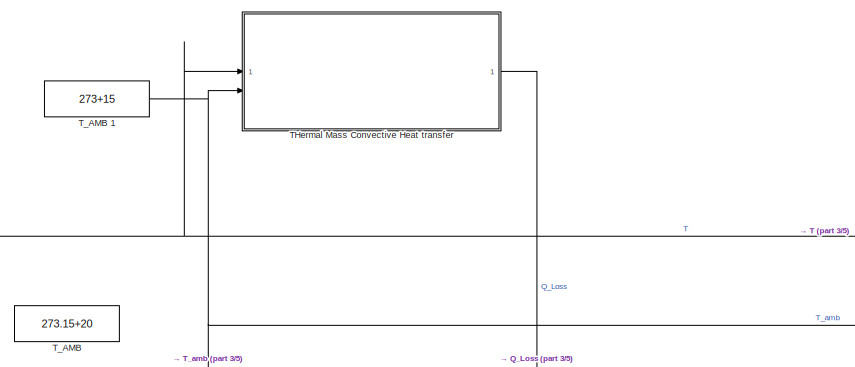
[diagram: root canvas - part 1/5, top center region]
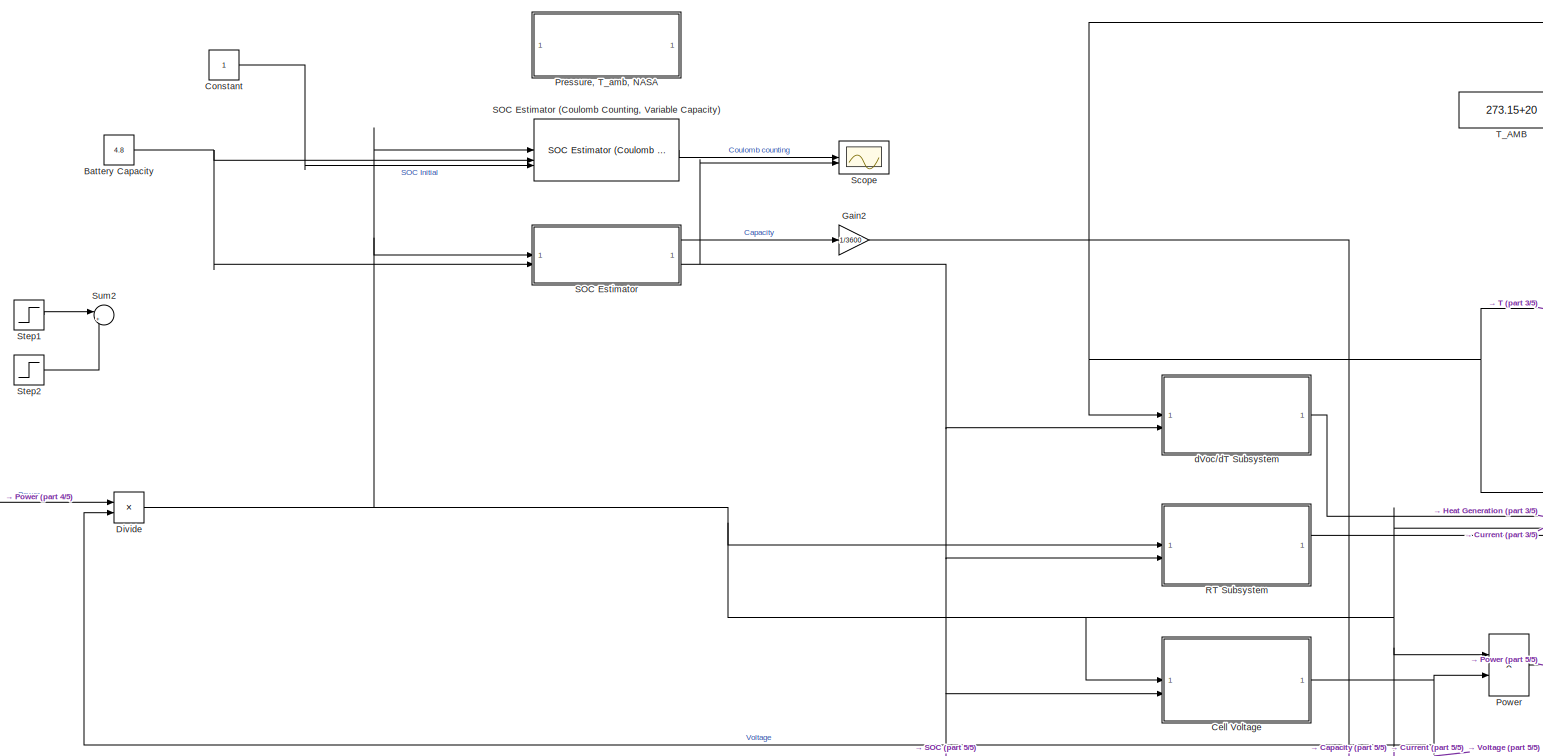
[diagram: root canvas - part 2/5, middle left region]
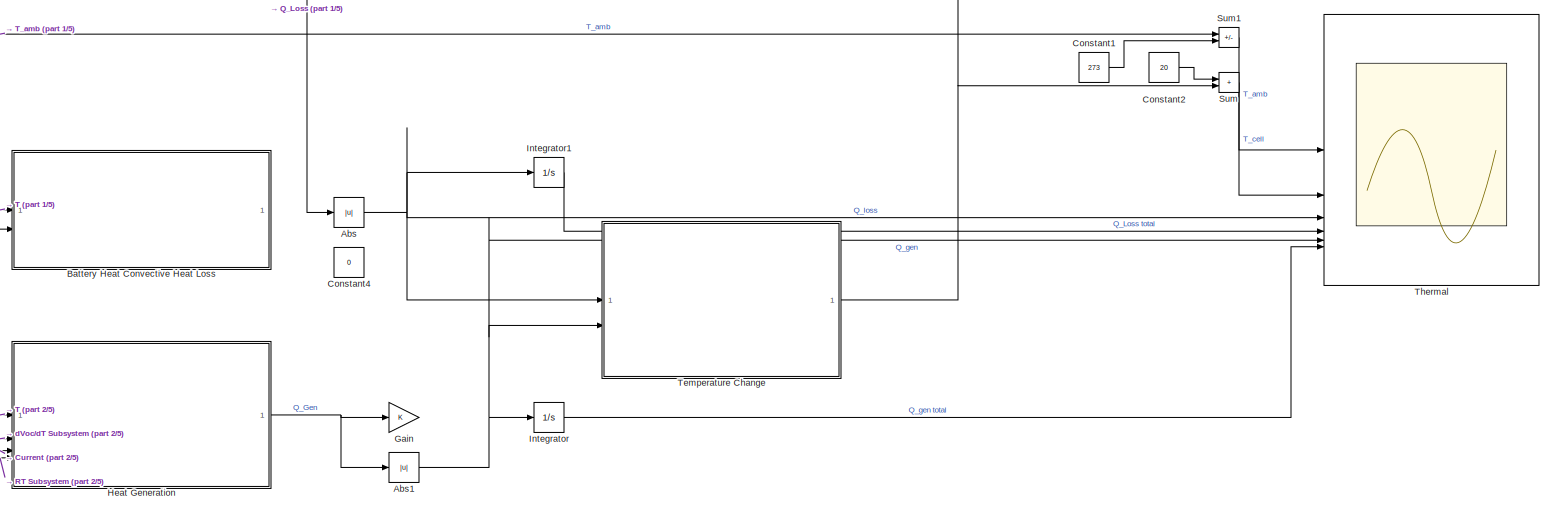
[diagram: root canvas - part 3/5, middle right region]
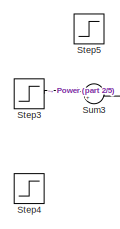
[diagram: root canvas - part 4/5, middle left region]
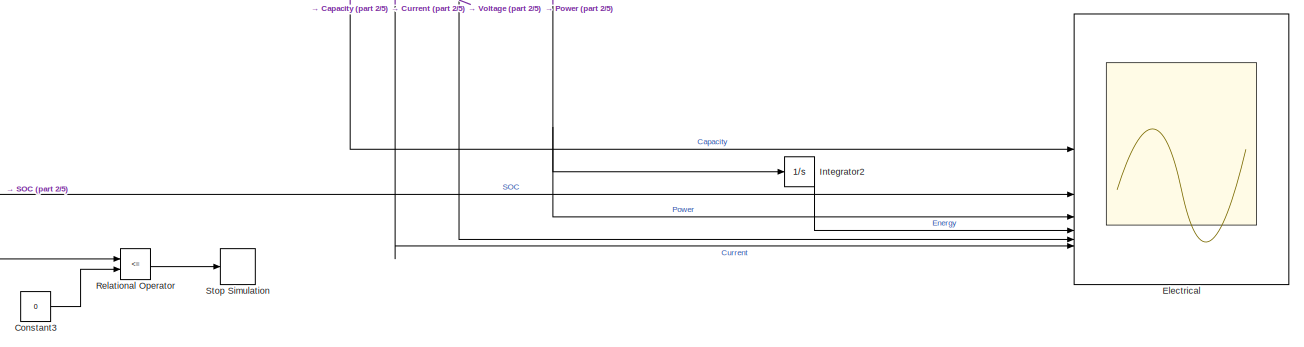
[diagram: root canvas - part 5/5, bottom center region]
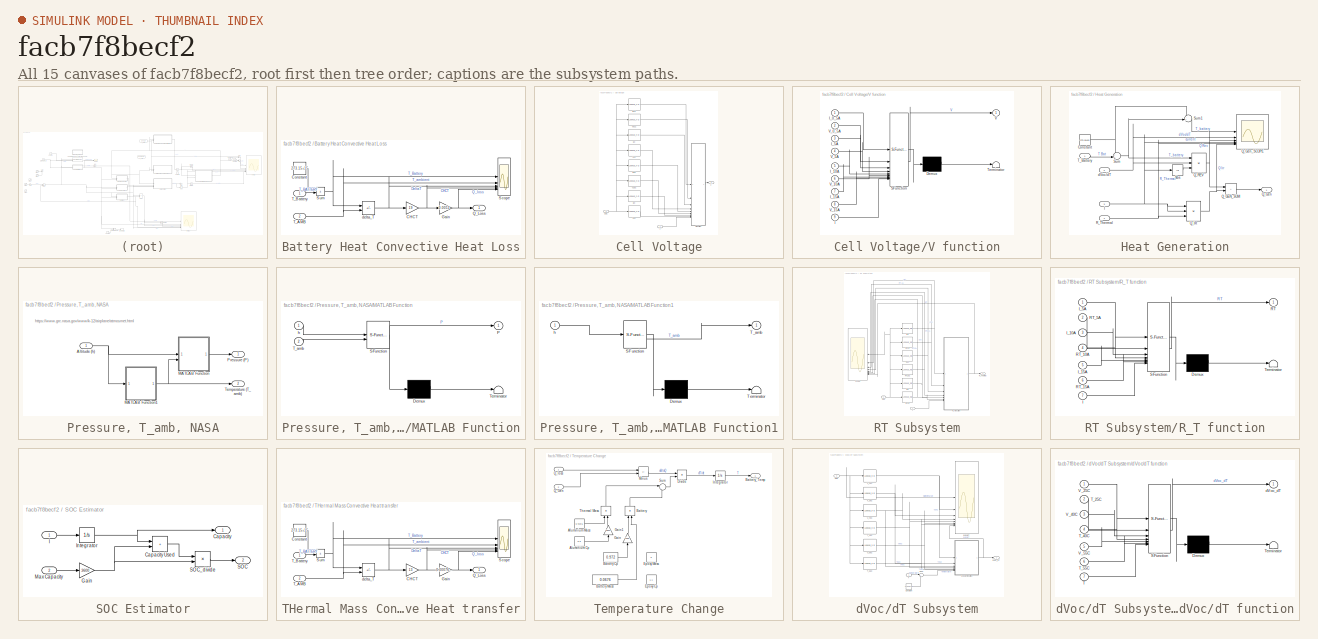
[diagram: thumbnail index - all 15 canvases of the model, root first then tree order]
MODEL slx_facb7f8becf2
KIND model
CONFIG AbsTol = auto
CONFIG EnableMultiTasking = off
CONFIG FixedStep = auto
CONFIG MaxStep = 0.03
CONFIG MinStep = auto
CONFIG RelTol = 1e-6
CONFIG SampleTimeConstraint = Unconstrained
CONFIG SolverName = ode23t
CONFIG StartTime = 0.0
CONFIG StopTime = 6*3600
WORKSPACE source: mxarray member
WORKSPACE C048A = [-4.646 -4.60016161616 -4.553 -4.506 -4.459 -4.41180808081 -4.36496969697 -4.31813131313 -4.27129292929 -4.22445454545 -4.17761616162 -4.13077777778 ... (100 elements, 100x1)]
WORKSPACE C25C = [-4.6365 -4.58998989899 -4.54347979798 -4.49604545455 -4.44945959596 -4.40294949495 -4.35593939394 -4.30893939394 -4.26241919192 -4.21540909091 -4.16848484848 -4.12155555556 ... (100 elements, 100x1)]
WORKSPACE C40C = [-4.693 -4.64635858586 -4.59905555556 -4.55133333333 -4.50411111111 -4.45679292929 -4.40916666667 -4.36194444444 -4.31472222222 -4.26727272727 -4.21977777778 -4.17244444444 ... (100 elements, 100x1)]
WORKSPACE C48A = [-4.565 -4.51971717172 -4.47343434343 -4.42715151515 -4.38086868687 -4.335 -4.289 -4.243 -4.19673737374 -4.15045454545 -4.10417171717 -4.058 ... (100 elements, 100x1)]
WORKSPACE C55C = [-4.736 -4.68873737374 -4.64097474747 -4.59321212121 -4.54544444444 -4.49718686869 -4.44942424242 -4.40166161616 -4.3538989899 -4.30613636364 -4.25837373737 -4.21061111111 ... (100 elements, 100x1)]
WORKSPACE C72A = [-4.552 -4.50695959596 -4.46091919192 -4.41487878788 -4.36983838384 -4.3237979798 -4.27775757576 -4.23171717172 -4.18567676768 -4.13963636364 -4.0935959596 -4.04755555556 ... (100 elements, 100x1)]
WORKSPACE C96A = [-4.554 -4.5084040404 -4.4625 -4.4165 -4.3705 -4.32467676768 -4.27863636364 -4.23257575758 -4.18651515152 -4.14045454545 -4.09439393939 -4.04838888889 ... (100 elements, 100x1)]
WORKSPACE I048A = [-0.48 -0.48 -0.48 -0.48 -0.48 -0.48 -0.48 -0.48 -0.48 -0.48 -0.48 -0.48 ... (100 elements, 100x1)]
WORKSPACE I48A = [-4.792 -4.792 -4.792 -4.792 -4.792 -4.792 -4.792 -4.792 -4.792 -4.792 -4.792 -4.792 ... (100 elements, 100x1)]
WORKSPACE I72A = [-7.19 -7.191 -7.191 -7.191 -7.191 -7.191 -7.191 -7.191 -7.191 -7.191 -7.191 -7.191 ... (100 elements, 100x1)]
WORKSPACE I96A = [-9.591 -9.591 -9.591 -9.591 -9.591 -9.591 -9.591 -9.591 -9.591 -9.591 -9.591 -9.591 ... (100 elements, 100x1)]
WORKSPACE Param: Simulink.Parameter (value not decoded)
WORKSPACE RT048 = [0 0 0 0 0 0 0 0 0 0 0 0 ... (100 elements, 100x1)]
WORKSPACE RT048A = [0 0 0 0 0 0 0 0 0 0 0 0 ... (100 elements, 100x1)]
WORKSPACE RT48A = [0 0.0119433061837 0.0174343602975 0.0201725097385 0.0218841166254 0.022368931384 0.0223984418475 0.0231362034367 0.0227462437396 0.0224237365306 0.0230708588388 0.0242533852717 ... (100 elements, 100x1)]
WORKSPACE RT72A = [0 0.0122979200993 0.0175935407475 0.020202020202 0.0216937838965 0.0225267555263 0.0230549129172 0.0237221330254 0.0239187873731 0.0241969128077 0.0252237294373 0.0266691388928 ... (100 elements, 100x1)]
WORKSPACE RT96A = [0 0.0106302309931 0.015521179894 0.0181246307302 0.0198249832282 0.0208391916243 0.0215479790081 0.0224110566619 0.0227069990911 0.0230234784504 0.0239687038248 0.0253072903996 ... (100 elements, 100x1)]
WORKSPACE SOC01C = [0 0.00986620401171 0.0200172191132 0.0301334481274 0.0402496771416 0.0504072146345 0.0604886575614 0.0705701004883 0.0806515434152 0.0907329863421 0.100814429269 0.110895872196 ... (100 elements, 100x1)]
WORKSPACE SOC15C = [0 0.00989464060642 0.0200089648684 0.0301232891303 0.0400179297367 0.0501322539987 0.0602465782606 0.0703609025226 0.0804752267845 0.0905895510465 0.100703875308 0.11081819957 ... (100 elements, 100x1)]
WORKSPACE SOC1C = [0 0.00991956807948 0.0200581942093 0.0301968203392 0.0403354464691 0.0503833515882 0.0604600219058 0.0705366922234 0.0806708929381 0.090809519068 0.100948145198 0.111062431544 ... (100 elements, 100x1)]
WORKSPACE SOC25C = [0 0.0100312953758 0.0200625907517 0.0302932266698 0.0403408614344 0.0503721568102 0.0605112921515 0.0706482489077 0.0806817228687 0.0908208582101 0.100941475578 0.111063182238 ... (100 elements, 100x1)]
WORKSPACE SOC2C = [0 0.0100122880097 0.020092226614 0.030193236715 0.040294246816 0.050356441002 0.0604663233122 0.0705806417269 0.0806949601416 0.0908092785563 0.100923596971 0.111025716098 ... (100 elements, 100x1)]
WORKSPACE SOC40C = [0 0.00993850716842 0.0200179937022 0.03018680304 0.04024907072 0.0503317857888 0.0604801477378 0.0705424154178 0.0806046830978 0.090715378804 0.100835760116 0.110921703719 ... (100 elements, 100x1)]
WORKSPACE SOC55C = [0 0.00997943966694 0.0200644536582 0.0301494676495 0.040235548048 0.0504250699563 0.0605100839476 0.0705950979388 0.0806801119301 0.0907651259214 0.100850139913 0.110935153904 ... (100 elements, 100x1)]
WORKSPACE T25C = [297.946805556 297.946193603 297.929952862 297.907583333 297.879161616 297.864882155 297.845863636 297.84875 297.844378788 297.852901515 297.87439899 297.893138889 ... (100 elements, 100x1)]
WORKSPACE T40C = [312.783611111 312.799016835 312.779327441 312.709037879 312.764760943 312.775969697 312.760472222 312.812088384 312.770179293 312.777401515 312.764757576 312.816768519 ... (100 elements, 100x1)]
WORKSPACE T55C = [327.602916667 327.628770202 327.629694444 327.60230303 327.617340909 327.627280303 327.630606061 327.639113636 327.603484848 327.641583333 327.626977273 327.647388889 ... (100 elements, 100x1)]
WORKSPACE V048A = [2.5 2.68851515152 2.80367676768 2.88551515152 2.951 3.00419191919 3.05003030303 3.09186868687 3.124 3.153 3.18438383838 3.21722222222 ... (100 elements, 100x1)]
WORKSPACE V25C = [2.4995 2.68887878788 2.80454040404 2.88553030303 2.95054040404 3.00379292929 3.04906060606 3.09057070707 3.13208080808 3.17309090909 3.21251515152 3.24794444444 ... (100 elements, 100x1)]
WORKSPACE V40C = [2.499 2.68894444444 2.80844444444 2.89090909091 2.95538888889 3.00911111111 3.05384848485 3.09348989899 3.13214646465 3.17127272727 3.21022222222 3.24738888889 ... (100 elements, 100x1)]
WORKSPACE V48A = [2.5 2.63128282828 2.72013131313 2.78884848485 2.84613131313 2.897 2.9426969697 2.981 3.015 3.04554545455 3.07382828283 3.101 ... (100 elements, 100x1)]
WORKSPACE V55C = [2.499 2.68891414141 2.80855050505 2.89028787879 2.95405050505 3.00636868687 3.05007575758 3.08772222222 3.12348989899 3.1595 3.19588888889 3.2315 ... (100 elements, 100x1)]
WORKSPACE V72A = [2.5 2.60008080808 2.67716161616 2.74024242424 2.795 2.8422020202 2.88424242424 2.92128282828 2.952 2.979 3.003 3.02544444444 ... (100 elements, 100x1)]
WORKSPACE V96A = [2.5 2.58656060606 2.65481313131 2.71168181818 2.76085858586 2.80432323232 2.84336363636 2.87692424242 2.90621717172 2.93218181818 2.9545 2.9745 ... (100 elements, 100x1)]
WORKSPACE t_CHG_25C = [18010 17847.8787879 17665.7575758 17483.6363636 17301.5151515 17119.3939394 16952.2727273 16770.1515152 16588.030303 16420.9090909 16238.7878788 16056.6666667 ... (100 elements, 100x1)]
WORKSPACE t_CHG_40C = [14605 14477.2727273 14329.5454545 14181.8181818 14049.0909091 13901.3636364 13768.6363636 13620.9090909 13473.1818182 13325.4545455 13177.7272727 13030 ... (100 elements, 100x1)]
WORKSPACE t_CHG_55C = [17190 17046.0606061 16872.1212121 16719.5454545 16554.2424242 16380.3030303 16206.3636364 16032.4242424 15858.4848485 15684.5454545 15510.6060606 15336.6666667 ... (100 elements, 100x1)]
BLOCK [Abs] Abs
  SaturateOnIntegerOverflow = off
BLOCK [Abs] Abs1
  SaturateOnIntegerOverflow = off
BLOCK [Constant] Battery Capacity
  Value = 4.8
  VectorParams1D = off
BLOCK [SubSystem] Battery Heat Convective Heat Loss
  Commented = on
BLOCK [Gain] Battery Heat Convective Heat Loss/CHCT
  Gain = 19
BLOCK [Constant] Battery Heat Convective Heat Loss/Constant
  Value = 273.15+15
BLOCK [Gain] Battery Heat Convective Heat Loss/Gain
  Gain = 0.0053
BLOCK [Outport] Battery Heat Convective Heat Loss/Q_Loss
BLOCK [Scope] Battery Heat Convective Heat Loss/Scope
  Floating = off
  NumInputPorts = 5
  ScopeSpecificationString = Simulink.scopes.TimeScopeBlockCfg('CurrentConfiguration', extmgr.ConfigurationSet(extmgr.Configuration('Core','General UI',true),extmgr.Configuration('Core','Source UI',true),extmgr.Configuration('Sources','WiredSimulink',true,'DataLoggingVariableName','ScopeData2'),extmgr.Configuration('Visuals','Time Domain',true,'SerializedDisplays',{struct('MinYLimReal','296.18737','MaxYLimReal','315.8137','YL...<+7204ch>
BLOCK [Sum] Battery Heat Convective Heat Loss/Sum
  IconShape = rectangular
  Inputs = +|+
BLOCK [Inport] Battery Heat Convective Heat Loss/T_AMB
  Port = 2
BLOCK [Inport] Battery Heat Convective Heat Loss/T_Battery
BLOCK [Sum] Battery Heat Convective Heat Loss/delta_T
  IconShape = rectangular
  Inputs = +|-
BLOCK [SubSystem] Cell Voltage
BLOCK [Inport] Cell Voltage/I
BLOCK [Lookup_n-D] Cell Voltage/I01C
  BreakpointsForDimension1 = SOC01C
  InputPortMap = u0
  InternalRulePriority = Speed
  NumberOfTableDimensions = 1
  RndMeth = Simplest
  SupportTunableSize = on
  Table = I048A
BLOCK [Lookup_n-D] Cell Voltage/I1.5C
  BreakpointsForDimension1 = SOC15C
  InputPortMap = u0
  InternalRulePriority = Speed
  NumberOfTableDimensions = 1
  RndMeth = Simplest
  SupportTunableSize = on
  Table = I72A
BLOCK [Lookup_n-D] Cell Voltage/I1C
  BreakpointsForDimension1 = SOC1C
  InputPortMap = u0
  InternalRulePriority = Speed
  NumberOfTableDimensions = 1
  RndMeth = Simplest
  SupportTunableSize = on
  Table = I48A
BLOCK [Lookup_n-D] Cell Voltage/I2C
  BreakpointsForDimension1 = SOC2C
  InputPortMap = u0
  InternalRulePriority = Speed
  NumberOfTableDimensions = 1
  RndMeth = Simplest
  SupportTunableSize = on
  Table = I96A
BLOCK [Inport] Cell Voltage/SOC
  Port = 2
BLOCK [Outport] Cell Voltage/V
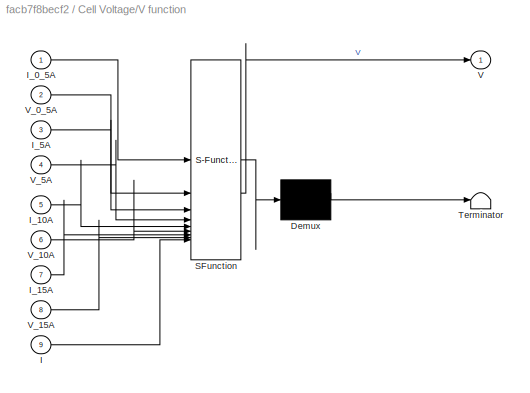
BLOCK [SubSystem] Cell Voltage/V function
  ErrorFcn = Stateflow.Translate.translate
  PermitHierarchicalResolution = ExplicitOnly
  SFBlockType = MATLAB Function
  TreatAsAtomicUnit = on
BLOCK [Demux] Cell Voltage/V function/ Demux 
  Outputs = 1
BLOCK [S-Function] Cell Voltage/V function/ SFunction 
  EnableBusSupport = on
  FunctionName = sf_sfun
  PortCounts = [9 2]
  SFcnIsStateOwnerBlock = off
  SFunctionDeploymentMode = off
  Tag = Stateflow S-Function 3
BLOCK [Terminator] Cell Voltage/V function/ Terminator 
BLOCK [Inport] Cell Voltage/V function/I
  Port = 9
BLOCK [Inport] Cell Voltage/V function/I_0_5A
BLOCK [Inport] Cell Voltage/V function/I_10A
  Port = 5
BLOCK [Inport] Cell Voltage/V function/I_15A
  Port = 7
BLOCK [Inport] Cell Voltage/V function/I_5A
  Port = 3
BLOCK [Outport] Cell Voltage/V function/V
BLOCK [Inport] Cell Voltage/V function/V_0_5A
  Port = 2
BLOCK [Inport] Cell Voltage/V function/V_10A
  Port = 6
BLOCK [Inport] Cell Voltage/V function/V_15A
  Port = 8
BLOCK [Inport] Cell Voltage/V function/V_5A
  Port = 4
BLOCK [Lookup_n-D] Cell Voltage/V01C
  BreakpointsForDimension1 = SOC01C
  InputPortMap = u0
  InternalRulePriority = Speed
  NumberOfTableDimensions = 1
  RndMeth = Simplest
  SupportTunableSize = on
  Table = V048A
BLOCK [Lookup_n-D] Cell Voltage/V1.5C
  BreakpointsForDimension1 = SOC15C
  InputPortMap = u0
  InternalRulePriority = Speed
  NumberOfTableDimensions = 1
  RndMeth = Simplest
  SupportTunableSize = on
  Table = V72A
BLOCK [Lookup_n-D] Cell Voltage/V1C
  BreakpointsForDimension1 = SOC1C
  InputPortMap = u0
  InternalRulePriority = Speed
  NumberOfTableDimensions = 1
  RndMeth = Simplest
  SupportTunableSize = on
  Table = V48A
BLOCK [Lookup_n-D] Cell Voltage/V2C
  BreakpointsForDimension1 = SOC2C
  InputPortMap = u0
  InternalRulePriority = Speed
  NumberOfTableDimensions = 1
  RndMeth = Simplest
  SupportTunableSize = on
  Table = V96A
BLOCK [Constant] Constant
BLOCK [Constant] Constant1
  Value = 273
BLOCK [Constant] Constant2
  Value = 20
BLOCK [Constant] Constant3
  Value = 0
BLOCK [Constant] Constant4
  Value = 0
BLOCK [Product] Divide
  Inputs = */
BLOCK [Scope] Electrical
  Floating = off
  NumInputPorts = 6
  ScopeSpecificationString = Simulink.scopes.TimeScopeBlockCfg('CurrentConfiguration', extmgr.ConfigurationSet(extmgr.Configuration('Core','General UI',true),extmgr.Configuration('Core','Source UI',true),extmgr.Configuration('Sources','WiredSimulink',true),extmgr.Configuration('Visuals','Time Domain',true,'SerializedDisplays',{struct('MinYLimReal','-5.4','MaxYLimReal','0.6','YLabelReal','','MinYLimMag','0.00000','MaxYLimMag',...<+5589ch>
BLOCK [Gain] Gain
BLOCK [Gain] Gain2
  Gain = 1/3600
BLOCK [SubSystem] Heat Generation
BLOCK [Abs] Heat Generation/Abs
  SaturateOnIntegerOverflow = off
BLOCK [Constant] Heat Generation/Constant
  Value = 273.15+20
BLOCK [Inport] Heat Generation/I
  Port = 3
BLOCK [Sum] Heat Generation/Q_GEN_SUM
  IconShape = rectangular
BLOCK [Outport] Heat Generation/Q_Gen
BLOCK [Scope] Heat Generation/Q_Gen_SCOPE
  Floating = off
  NumInputPorts = 6
  ScopeSpecificationString = Simulink.scopes.TimeScopeBlockCfg('CurrentConfiguration', extmgr.ConfigurationSet(extmgr.Configuration('Core','General UI',true),extmgr.Configuration('Core','Source UI',true),extmgr.Configuration('Sources','WiredSimulink',true,'DataLoggingVariableName','ScopeData2'),extmgr.Configuration('Visuals','Time Domain',true,'SerializedDisplays',{struct('MinYLimReal','-2.03398','MaxYLimReal','18.29364','YLa...<+5708ch>
BLOCK [Product] Heat Generation/Q_IR
  Inputs = 3
BLOCK [Product] Heat Generation/Q_REV
  Inputs = 3
BLOCK [Inport] Heat Generation/R_Thermal
  Port = 4
BLOCK [Sum] Heat Generation/Sum
  Inputs = ++|
BLOCK [Sum] Heat Generation/Sum1
  Inputs = -+|
BLOCK [Inport] Heat Generation/T_Battery
BLOCK [Inport] Heat Generation/dVoc//dT
  Port = 2
BLOCK [Integrator] Integrator
BLOCK [Integrator] Integrator1
BLOCK [Integrator] Integrator2
BLOCK [Product] Power
BLOCK [SubSystem] Pressure, T_amb, NASA
BLOCK [Inport] Pressure, T_amb, NASA/Altitude (h)
BLOCK [SubSystem] Pressure, T_amb, NASA/MATLAB Function
  ErrorFcn = Stateflow.Translate.translate
  PermitHierarchicalResolution = ExplicitOnly
  SFBlockType = MATLAB Function
  TreatAsAtomicUnit = on
BLOCK [Demux] Pressure, T_amb, NASA/MATLAB Function/ Demux 
  Outputs = 1
BLOCK [S-Function] Pressure, T_amb, NASA/MATLAB Function/ SFunction 
  EnableBusSupport = on
  FunctionName = sf_sfun
  PortCounts = [2 2]
  SFcnIsStateOwnerBlock = off
  SFunctionDeploymentMode = off
  Tag = Stateflow S-Function 4
BLOCK [Terminator] Pressure, T_amb, NASA/MATLAB Function/ Terminator 
BLOCK [Outport] Pressure, T_amb, NASA/MATLAB Function/P
BLOCK [Inport] Pressure, T_amb, NASA/MATLAB Function/T_amb
  Port = 2
BLOCK [Inport] Pressure, T_amb, NASA/MATLAB Function/h
BLOCK [SubSystem] Pressure, T_amb, NASA/MATLAB Function1
  ErrorFcn = Stateflow.Translate.translate
  PermitHierarchicalResolution = ExplicitOnly
  SFBlockType = MATLAB Function
  TreatAsAtomicUnit = on
BLOCK [Demux] Pressure, T_amb, NASA/MATLAB Function1/ Demux 
  Outputs = 1
BLOCK [S-Function] Pressure, T_amb, NASA/MATLAB Function1/ SFunction 
  EnableBusSupport = on
  FunctionName = sf_sfun
  PortCounts = [1 2]
  SFcnIsStateOwnerBlock = off
  SFunctionDeploymentMode = off
  Tag = Stateflow S-Function 5
BLOCK [Terminator] Pressure, T_amb, NASA/MATLAB Function1/ Terminator 
BLOCK [Outport] Pressure, T_amb, NASA/MATLAB Function1/T_amb
BLOCK [Inport] Pressure, T_amb, NASA/MATLAB Function1/h
BLOCK [Outport] Pressure, T_amb, NASA/Pressure (P)
BLOCK [Outport] Pressure, T_amb, NASA/Temperature (T_amb)
  Port = 2
BLOCK [SubSystem] RT Subsystem
BLOCK [Inport] RT Subsystem/I
BLOCK [Lookup_n-D] RT Subsystem/I1.5C
  BreakpointsForDimension1 = SOC15C
  InputPortMap = u0
  InternalRulePriority = Speed
  NumberOfTableDimensions = 1
  RndMeth = Simplest
  Table = I72A
BLOCK [Lookup_n-D] RT Subsystem/I1C
  BreakpointsForDimension1 = SOC1C
  InputPortMap = u0
  InternalRulePriority = Speed
  NumberOfTableDimensions = 1
  RndMeth = Simplest
  Table = I48A
BLOCK [Lookup_n-D] RT Subsystem/I2C
  BreakpointsForDimension1 = SOC2C
  InputPortMap = u0
  InternalRulePriority = Speed
  NumberOfTableDimensions = 1
  RndMeth = Simplest
  Table = I96A
BLOCK [Lookup_n-D] RT Subsystem/RT1.5C
  BreakpointsForDimension1 = SOC15C
  InputPortMap = u0
  InternalRulePriority = Speed
  NumberOfTableDimensions = 1
  RndMeth = Simplest
  Table = RT72A
BLOCK [Lookup_n-D] RT Subsystem/RT1C
  BreakpointsForDimension1 = SOC1C
  InputPortMap = u0
  InternalRulePriority = Speed
  NumberOfTableDimensions = 1
  RndMeth = Simplest
  Table = RT48A
BLOCK [Lookup_n-D] RT Subsystem/RT2C
  BreakpointsForDimension1 = SOC2C
  InputPortMap = u0
  InternalRulePriority = Speed
  NumberOfTableDimensions = 1
  RndMeth = Simplest
  Table = RT96A
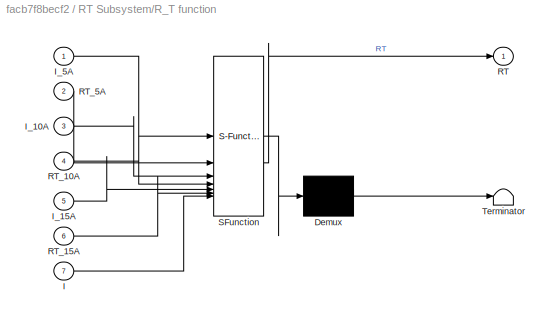
BLOCK [SubSystem] RT Subsystem/R_T function
  ErrorFcn = Stateflow.Translate.translate
  PermitHierarchicalResolution = ExplicitOnly
  SFBlockType = MATLAB Function
  TreatAsAtomicUnit = on
BLOCK [Demux] RT Subsystem/R_T function/ Demux 
  Outputs = 1
BLOCK [S-Function] RT Subsystem/R_T function/ SFunction 
  EnableBusSupport = on
  FunctionName = sf_sfun
  PortCounts = [7 2]
  SFcnIsStateOwnerBlock = off
  SFunctionDeploymentMode = off
  Tag = Stateflow S-Function 1
BLOCK [Terminator] RT Subsystem/R_T function/ Terminator 
BLOCK [Inport] RT Subsystem/R_T function/I
  Port = 7
BLOCK [Inport] RT Subsystem/R_T function/I_10A
  Port = 3
BLOCK [Inport] RT Subsystem/R_T function/I_15A
  Port = 5
BLOCK [Inport] RT Subsystem/R_T function/I_5A
BLOCK [Outport] RT Subsystem/R_T function/RT
BLOCK [Inport] RT Subsystem/R_T function/RT_10A
  Port = 4
BLOCK [Inport] RT Subsystem/R_T function/RT_15A
  Port = 6
BLOCK [Inport] RT Subsystem/R_T function/RT_5A
  Port = 2
BLOCK [Outport] RT Subsystem/R_Thermal
BLOCK [Inport] RT Subsystem/SOC
  Port = 2
BLOCK [Scope] RT Subsystem/Scope
  Floating = off
  NameLocation = top
  NumInputPorts = 8
  ScopeSpecificationString = Simulink.scopes.TimeScopeBlockCfg('CurrentConfiguration', extmgr.ConfigurationSet(extmgr.Configuration('Core','General UI',true),extmgr.Configuration('Core','Source UI',true),extmgr.Configuration('Sources','WiredSimulink',true,'DataLoggingVariableName','ScopeData3'),extmgr.Configuration('Visuals','Time Domain',true,'SerializedDisplays',{struct('MinYLimReal','-0.125','MaxYLimReal','1.125','YLabelRe...<+7212ch>
BLOCK [RelationalOperator] Relational Operator
  InputSameDT = off
  Operator = <=
  OutDataTypeStr = boolean
  RndMeth = Simplest
BLOCK [SubSystem] SOC Estimator
BLOCK [Reference] SOC Estimator (Coulomb Counting, Variable Capacity)  REF=BatteryEstimators/SOC Estimator
(Coulomb Counting, Variable Capacity)
  LibrarySourceBlock = batt_sl_lib/Estimators/SOC Estimator\n(Coulomb Counting, Variable Capacity)
  SourceBlock = BatteryEstimators/SOC Estimator\n(Coulomb Counting, Variable Capacity)
  SourceType = SOC Estimator (Coulomb Counting, Variable Capacity)
BLOCK [Outport] SOC Estimator/Capacity
BLOCK [Sum] SOC Estimator/Capacity Used
  IconShape = rectangular
BLOCK [Gain] SOC Estimator/Gain
  Gain = 3600
BLOCK [Inport] SOC Estimator/I
BLOCK [Integrator] SOC Estimator/Integrator
BLOCK [Inport] SOC Estimator/Max Capacity
  Port = 2
BLOCK [Outport] SOC Estimator/SOC
  Port = 2
BLOCK [Product] SOC Estimator/SOC_divide
  Inputs = */
BLOCK [Scope] Scope
  Floating = off
  NumInputPorts = 2
  ScopeSpecificationString = Simulink.scopes.TimeScopeBlockCfg('CurrentConfiguration', extmgr.ConfigurationSet(extmgr.Configuration('Core','General UI',true),extmgr.Configuration('Core','Source UI',true),extmgr.Configuration('Sources','WiredSimulink',true,'DataLoggingVariableName','ScopeData1'),extmgr.Configuration('Visuals','Time Domain',true,'SerializedDisplays',{struct('MinYLimReal','-0.12489','MaxYLimReal','1.12499','YLab...<+2146ch>
BLOCK [Step] Step1
  After = -25
  SampleTime = 0
  Time = 2
BLOCK [Step] Step2
  After = +25-1
  SampleTime = 0
  Time = 180
BLOCK [Step] Step3
  After = -36/12
  SampleTime = 0
BLOCK [Step] Step4
  After = +85-2.5
  SampleTime = 0
  Time = 180
BLOCK [Step] Step5
  After = -300/12
  SampleTime = 0
BLOCK [Stop] Stop Simulation
BLOCK [Sum] Sum
  IconShape = rectangular
  Inputs = +|+
BLOCK [Sum] Sum1
  IconShape = rectangular
  Inputs = +|-
BLOCK [Sum] Sum2
  Inputs = |++
BLOCK [Sum] Sum3
  Inputs = |++
BLOCK [SubSystem] THermal Mass Convective Heat transfer
BLOCK [Gain] THermal Mass Convective Heat transfer/CHCT
  Gain = 13
BLOCK [Constant] THermal Mass Convective Heat transfer/Constant
  Value = 273.15+15
BLOCK [Gain] THermal Mass Convective Heat transfer/Gain
  Gain = 0.0007667
BLOCK [Outport] THermal Mass Convective Heat transfer/Q_Loss
BLOCK [Scope] THermal Mass Convective Heat transfer/Scope
  Floating = off
  NumInputPorts = 5
  ScopeSpecificationString = Simulink.scopes.TimeScopeBlockCfg('CurrentConfiguration', extmgr.ConfigurationSet(extmgr.Configuration('Core','General UI',true),extmgr.Configuration('Core','Source UI',true),extmgr.Configuration('Sources','WiredSimulink',true,'DataLoggingVariableName','ScopeData2'),extmgr.Configuration('Visuals','Time Domain',true,'SerializedDisplays',{struct('MinYLimReal','286.49828','MaxYLimReal','303.00367','Y...<+7200ch>
BLOCK [Sum] THermal Mass Convective Heat transfer/Sum
  IconShape = rectangular
  Inputs = +|+
BLOCK [Inport] THermal Mass Convective Heat transfer/T_AMB
  Port = 2
BLOCK [Inport] THermal Mass Convective Heat transfer/T_Battery
BLOCK [Sum] THermal Mass Convective Heat transfer/delta_T
  IconShape = rectangular
  Inputs = +|-
BLOCK [Constant] T_AMB 
  Value = 273.15+20
  VectorParams1D = off
BLOCK [Constant] T_AMB 1
  Value = 273+15
  VectorParams1D = off
BLOCK [SubSystem] Temperature Change
BLOCK [Constant] Temperature Change/Aluminium Cp
  Value = 0.9
  VectorParams1D = off
BLOCK [Constant] Temperature Change/Aluminium Mass
  Value = 0.414/6
  VectorParams1D = off
BLOCK [Product] Temperature Change/Battery
  NameLocation = top
  OutDataTypeStr = double
BLOCK [Constant] Temperature Change/Battery Cp
  Value = 0.972
  VectorParams1D = off
BLOCK [Constant] Temperature Change/Battery Mass
  Value = 0.0676
  VectorParams1D = off
BLOCK [Outport] Temperature Change/Battery_Temp
BLOCK [Product] Temperature Change/Divide
  Inputs = */
BLOCK [Constant] Temperature Change/Epoxy Cp
  Value = 1.1
  VectorParams1D = off
BLOCK [Constant] Temperature Change/Epoxy Mass
  Value = 0
  VectorParams1D = off
BLOCK [Gain] Temperature Change/Gain
  Gain = 1000
  NameLocation = right
BLOCK [Gain] Temperature Change/Gain1
  Gain = 1000
  NameLocation = right
BLOCK [Integrator] Temperature Change/Integrator
BLOCK [Sum] Temperature Change/Minus
  IconShape = rectangular
  Inputs = -+
BLOCK [Inport] Temperature Change/Q_Gen
  Port = 2
BLOCK [Inport] Temperature Change/Q_loss
BLOCK [Sum] Temperature Change/Sum
  Inputs = |++
BLOCK [Product] Temperature Change/Thermal Mass
  NameLocation = top
  OutDataTypeStr = double
BLOCK [Scope] Thermal
  Floating = off
  NumInputPorts = 6
  ScopeSpecificationString = Simulink.scopes.TimeScopeBlockCfg('CurrentConfiguration', extmgr.ConfigurationSet(extmgr.Configuration('Core','General UI',true),extmgr.Configuration('Core','Source UI',true),extmgr.Configuration('Sources','WiredSimulink',true,'DataLoggingVariableName','ScopeData1'),extmgr.Configuration('Visuals','Time Domain',true,'SerializedDisplays',{struct('MinYLimReal','5.00000','MaxYLimReal','25.00000','YLab...<+5378ch>
BLOCK [SubSystem] dVoc//dT Subsystem
BLOCK [Constant] dVoc//dT Subsystem/Constant
  Value = 273.15+20
BLOCK [Inport] dVoc//dT Subsystem/SOC
  Port = 2
BLOCK [Sum] dVoc//dT Subsystem/Sum
  Inputs = |++
BLOCK [Inport] dVoc//dT Subsystem/T
BLOCK [Lookup_n-D] dVoc//dT Subsystem/T_25C
  BreakpointsForDimension1 = SOC25C
  InputPortMap = u0
  InternalRulePriority = Speed
  NumberOfTableDimensions = 1
  RndMeth = Simplest
  SupportTunableSize = on
  Table = T25C
BLOCK [Lookup_n-D] dVoc//dT Subsystem/T_40C
  BreakpointsForDimension1 = SOC40C
  InputPortMap = u0
  InternalRulePriority = Speed
  NumberOfTableDimensions = 1
  RndMeth = Simplest
  SupportTunableSize = on
  Table = T40C
BLOCK [Lookup_n-D] dVoc//dT Subsystem/T_55C
  BreakpointsForDimension1 = SOC55C
  InputPortMap = u0
  InternalRulePriority = Speed
  NumberOfTableDimensions = 1
  RndMeth = Simplest
  SupportTunableSize = on
  Table = T55C
BLOCK [Lookup_n-D] dVoc//dT Subsystem/V_25C
  BreakpointsForDimension1 = SOC25C
  InputPortMap = u0
  InternalRulePriority = Speed
  NumberOfTableDimensions = 1
  RndMeth = Simplest
  SupportTunableSize = on
  Table = V25C
BLOCK [Lookup_n-D] dVoc//dT Subsystem/V_40C
  BreakpointsForDimension1 = SOC40C
  InputPortMap = u0
  InternalRulePriority = Speed
  NumberOfTableDimensions = 1
  RndMeth = Simplest
  SupportTunableSize = on
  Table = V40C
BLOCK [Lookup_n-D] dVoc//dT Subsystem/V_55C
  BreakpointsForDimension1 = SOC55C
  InputPortMap = u0
  InternalRulePriority = Speed
  NumberOfTableDimensions = 1
  RndMeth = Simplest
  SupportTunableSize = on
  Table = V55C
BLOCK [Scope] dVoc//dT Subsystem/dVoc//dT
  Floating = off
  NumInputPorts = 8
  ScopeSpecificationString = Simulink.scopes.TimeScopeBlockCfg('CurrentConfiguration', extmgr.ConfigurationSet(extmgr.Configuration('Core','General UI',true),extmgr.Configuration('Core','Source UI',true),extmgr.Configuration('Sources','WiredSimulink',true,'DataLoggingVariableName','ScopeData1'),extmgr.Configuration('Visuals','Time Domain',true,'SerializedDisplays',{struct('MinYLimReal','-0.12452','MaxYLimReal','1.12495','YLab...<+6947ch>
BLOCK [SubSystem] dVoc//dT Subsystem/dVoc//dT function
  ErrorFcn = Stateflow.Translate.translate
  PermitHierarchicalResolution = ExplicitOnly
  SFBlockType = MATLAB Function
  TreatAsAtomicUnit = on
BLOCK [Demux] dVoc//dT Subsystem/dVoc//dT function/ Demux 
  Outputs = 1
BLOCK [S-Function] dVoc//dT Subsystem/dVoc//dT function/ SFunction 
  EnableBusSupport = on
  FunctionName = sf_sfun
  PortCounts = [7 2]
  SFcnIsStateOwnerBlock = off
  SFunctionDeploymentMode = off
  Tag = Stateflow S-Function 2
BLOCK [Terminator] dVoc//dT Subsystem/dVoc//dT function/ Terminator 
BLOCK [Inport] dVoc//dT Subsystem/dVoc//dT function/T
  Port = 7
BLOCK [Inport] dVoc//dT Subsystem/dVoc//dT function/T_25C
  Port = 2
BLOCK [Inport] dVoc//dT Subsystem/dVoc//dT function/T_40C
  Port = 4
BLOCK [Inport] dVoc//dT Subsystem/dVoc//dT function/T_55C
  Port = 6
BLOCK [Inport] dVoc//dT Subsystem/dVoc//dT function/V_25C
BLOCK [Inport] dVoc//dT Subsystem/dVoc//dT function/V_40C
  Port = 3
BLOCK [Inport] dVoc//dT Subsystem/dVoc//dT function/V_55C
  Port = 5
BLOCK [Outport] dVoc//dT Subsystem/dVoc//dT function/dVoc_dT
BLOCK [Outport] dVoc//dT Subsystem/dVoc_dT
ANNOTATION Pressure, T_amb, NASA: https://www.grc.nasa.gov/www/k-12/airplane/atmosmet.html
NET Abs1:1 -> Integrator:1, Temperature Change:2, Thermal:5
NET Abs:1 -> Integrator1:1, Temperature Change:1, Thermal:3
NET Battery Capacity:1 -> SOC Estimator (Coulomb Counting, Variable Capacity):2, SOC Estimator:2
NET Battery Heat Convective Heat Loss/CHCT:1 -> Battery Heat Convective Heat Loss/Gain:1, Battery Heat Convective Heat Loss/Scope:4
LINE Battery Heat Convective Heat Loss/Constant:1 -> Battery Heat Convective Heat Loss/Sum:1
NET Battery Heat Convective Heat Loss/Gain:1 -> Battery Heat Convective Heat Loss/Q_Loss:1, Battery Heat Convective Heat Loss/Scope:5
NET Battery Heat Convective Heat Loss/Sum:1 -> Battery Heat Convective Heat Loss/Scope:1, Battery Heat Convective Heat Loss/delta_T:1
NET Battery Heat Convective Heat Loss/T_AMB:1 -> Battery Heat Convective Heat Loss/Scope:2, Battery Heat Convective Heat Loss/delta_T:2
LINE Battery Heat Convective Heat Loss/T_Battery:1 -> Battery Heat Convective Heat Loss/Sum:2
NET Battery Heat Convective Heat Loss/delta_T:1 -> Battery Heat Convective Heat Loss/CHCT:1, Battery Heat Convective Heat Loss/Scope:3
LINE Cell Voltage/I01C:1 -> Cell Voltage/V function:1
LINE Cell Voltage/I1.5C:1 -> Cell Voltage/V function:5
LINE Cell Voltage/I1C:1 -> Cell Voltage/V function:3
LINE Cell Voltage/I2C:1 -> Cell Voltage/V function:7
LINE Cell Voltage/I:1 -> Cell Voltage/V function:9
NET Cell Voltage/SOC:1 -> Cell Voltage/I01C:1, Cell Voltage/I1.5C:1, Cell Voltage/I1C:1, Cell Voltage/I2C:1, Cell Voltage/V01C:1, Cell Voltage/V1.5C:1, Cell Voltage/V1C:1, Cell Voltage/V2C:1
LINE Cell Voltage/V function:1 -> Cell Voltage/V:1
LINE Cell Voltage/V01C:1 -> Cell Voltage/V function:2
LINE Cell Voltage/V1.5C:1 -> Cell Voltage/V function:6
LINE Cell Voltage/V1C:1 -> Cell Voltage/V function:4
LINE Cell Voltage/V2C:1 -> Cell Voltage/V function:8
NET Cell Voltage:1 -> Divide:2, Electrical:5, Power:2
LINE Constant1:1 -> Sum1:2
LINE Constant2:1 -> Sum:1
LINE Constant3:1 -> Relational Operator:2
LINE Constant:1 -> SOC Estimator (Coulomb Counting, Variable Capacity):3
NET Divide:1 -> Cell Voltage:1, Electrical:6, Heat Generation:3, Power:1, RT Subsystem:1, SOC Estimator (Coulomb Counting, Variable Capacity):1, SOC Estimator:1
LINE Gain2:1 -> Electrical:1
LINE Heat Generation/Abs:1 -> Heat Generation/Q_REV:3
NET Heat Generation/Constant:1 -> Heat Generation/Sum1:1, Heat Generation/Sum:1
NET Heat Generation/I:1 -> Heat Generation/Abs:1, Heat Generation/Q_Gen_SCOPE:4, Heat Generation/Q_IR:1, Heat Generation/Q_IR:2
LINE Heat Generation/Q_GEN_SUM:1 -> Heat Generation/Q_Gen:1
NET Heat Generation/Q_IR:1 -> Heat Generation/Q_GEN_SUM:2, Heat Generation/Q_Gen_SCOPE:6
NET Heat Generation/Q_REV:1 -> Heat Generation/Q_GEN_SUM:1, Heat Generation/Q_Gen_SCOPE:3
NET Heat Generation/R_Thermal:1 -> Heat Generation/Q_Gen_SCOPE:5, Heat Generation/Q_IR:3
LINE Heat Generation/Sum1:1 -> Heat Generation/Q_Gen_SCOPE:1
NET Heat Generation/Sum:1 -> Heat Generation/Q_REV:1, Heat Generation/Sum1:2
LINE Heat Generation/T_Battery:1 -> Heat Generation/Sum:2
NET Heat Generation/dVoc//dT:1 -> Heat Generation/Q_Gen_SCOPE:2, Heat Generation/Q_REV:2
NET Heat Generation:1 -> Abs1:1, Gain:1
LINE Integrator1:1 -> Thermal:4
LINE Integrator2:1 -> Electrical:4
LINE Integrator:1 -> Thermal:6
NET Power:1 -> Electrical:3, Integrator2:1
NET Pressure, T_amb, NASA/Altitude (h):1 -> Pressure, T_amb, NASA/MATLAB Function1:1, Pressure, T_amb, NASA/MATLAB Function:1
NET Pressure, T_amb, NASA/MATLAB Function1:1 -> Pressure, T_amb, NASA/MATLAB Function:2, Pressure, T_amb, NASA/Temperature (T_amb):1
LINE Pressure, T_amb, NASA/MATLAB Function:1 -> Pressure, T_amb, NASA/Pressure (P):1
NET RT Subsystem/I1.5C:1 -> RT Subsystem/R_T function:3, RT Subsystem/Scope:4
NET RT Subsystem/I1C:1 -> RT Subsystem/R_T function:1, RT Subsystem/Scope:2
NET RT Subsystem/I2C:1 -> RT Subsystem/R_T function:5, RT Subsystem/Scope:6
LINE RT Subsystem/I:1 -> RT Subsystem/R_T function:7
NET RT Subsystem/RT1.5C:1 -> RT Subsystem/R_T function:4, RT Subsystem/Scope:5
NET RT Subsystem/RT1C:1 -> RT Subsystem/R_T function:2, RT Subsystem/Scope:3
NET RT Subsystem/RT2C:1 -> RT Subsystem/R_T function:6, RT Subsystem/Scope:7
NET RT Subsystem/R_T function:1 -> RT Subsystem/R_Thermal:1, RT Subsystem/Scope:8
NET RT Subsystem/SOC:1 -> RT Subsystem/I1.5C:1, RT Subsystem/I1C:1, RT Subsystem/I2C:1, RT Subsystem/RT1.5C:1, RT Subsystem/RT1C:1, RT Subsystem/RT2C:1, RT Subsystem/Scope:1
LINE RT Subsystem:1 -> Heat Generation:4
LINE Relational Operator:1 -> Stop Simulation:1
LINE SOC Estimator (Coulomb Counting, Variable Capacity):1 -> Scope:1
LINE SOC Estimator/Capacity Used:1 -> SOC Estimator/SOC_divide:1
NET SOC Estimator/Gain:1 -> SOC Estimator/Capacity Used:2, SOC Estimator/SOC_divide:2
LINE SOC Estimator/I:1 -> SOC Estimator/Integrator:1
NET SOC Estimator/Integrator:1 -> SOC Estimator/Capacity Used:1, SOC Estimator/Capacity:1
LINE SOC Estimator/Max Capacity:1 -> SOC Estimator/Gain:1
LINE SOC Estimator/SOC_divide:1 -> SOC Estimator/SOC:1
LINE SOC Estimator:1 -> Gain2:1
NET SOC Estimator:2 -> Cell Voltage:2, Electrical:2, RT Subsystem:2, Relational Operator:1, Scope:2, dVoc//dT Subsystem:2
LINE Step1:1 -> Sum2:1
LINE Step2:1 -> Sum2:2
LINE Step3:1 -> Sum3:1
LINE Sum1:1 -> Thermal:1
LINE Sum3:1 -> Divide:1
LINE Sum:1 -> Thermal:2
NET THermal Mass Convective Heat transfer/CHCT:1 -> THermal Mass Convective Heat transfer/Gain:1, THermal Mass Convective Heat transfer/Scope:4
LINE THermal Mass Convective Heat transfer/Constant:1 -> THermal Mass Convective Heat transfer/Sum:1
NET THermal Mass Convective Heat transfer/Gain:1 -> THermal Mass Convective Heat transfer/Q_Loss:1, THermal Mass Convective Heat transfer/Scope:5
NET THermal Mass Convective Heat transfer/Sum:1 -> THermal Mass Convective Heat transfer/Scope:1, THermal Mass Convective Heat transfer/delta_T:1
NET THermal Mass Convective Heat transfer/T_AMB:1 -> THermal Mass Convective Heat transfer/Scope:2, THermal Mass Convective Heat transfer/delta_T:2
LINE THermal Mass Convective Heat transfer/T_Battery:1 -> THermal Mass Convective Heat transfer/Sum:2
NET THermal Mass Convective Heat transfer/delta_T:1 -> THermal Mass Convective Heat transfer/CHCT:1, THermal Mass Convective Heat transfer/Scope:3
LINE THermal Mass Convective Heat transfer:1 -> Abs:1
NET T_AMB 1:1 -> Battery Heat Convective Heat Loss:2, Sum1:1, THermal Mass Convective Heat transfer:2
LINE Temperature Change/Aluminium Cp:1 -> Temperature Change/Gain1:1
LINE Temperature Change/Aluminium Mass:1 -> Temperature Change/Thermal Mass:1
LINE Temperature Change/Battery Cp:1 -> Temperature Change/Gain:1
LINE Temperature Change/Battery Mass:1 -> Temperature Change/Battery:2
LINE Temperature Change/Battery:1 -> Temperature Change/Sum:2
LINE Temperature Change/Divide:1 -> Temperature Change/Integrator:1
LINE Temperature Change/Gain1:1 -> Temperature Change/Thermal Mass:2
LINE Temperature Change/Gain:1 -> Temperature Change/Battery:1
LINE Temperature Change/Integrator:1 -> Temperature Change/Battery_Temp:1
LINE Temperature Change/Minus:1 -> Temperature Change/Divide:1
LINE Temperature Change/Q_Gen:1 -> Temperature Change/Minus:2
LINE Temperature Change/Q_loss:1 -> Temperature Change/Minus:1
LINE Temperature Change/Sum:1 -> Temperature Change/Divide:2
LINE Temperature Change/Thermal Mass:1 -> Temperature Change/Sum:1
NET Temperature Change:1 -> Battery Heat Convective Heat Loss:1, Heat Generation:1, Sum:2, THermal Mass Convective Heat transfer:1, dVoc//dT Subsystem:1
LINE dVoc//dT Subsystem/Constant:1 -> dVoc//dT Subsystem/Sum:2
NET dVoc//dT Subsystem/SOC:1 -> dVoc//dT Subsystem/T_25C:1, dVoc//dT Subsystem/T_40C:1, dVoc//dT Subsystem/T_55C:1, dVoc//dT Subsystem/V_25C:1, dVoc//dT Subsystem/V_40C:1, dVoc//dT Subsystem/V_55C:1, dVoc//dT Subsystem/dVoc//dT:1
LINE dVoc//dT Subsystem/Sum:1 -> dVoc//dT Subsystem/dVoc//dT function:7
LINE dVoc//dT Subsystem/T:1 -> dVoc//dT Subsystem/Sum:1
NET dVoc//dT Subsystem/T_25C:1 -> dVoc//dT Subsystem/dVoc//dT function:2, dVoc//dT Subsystem/dVoc//dT:3
NET dVoc//dT Subsystem/T_40C:1 -> dVoc//dT Subsystem/dVoc//dT function:4, dVoc//dT Subsystem/dVoc//dT:5
NET dVoc//dT Subsystem/T_55C:1 -> dVoc//dT Subsystem/dVoc//dT function:6, dVoc//dT Subsystem/dVoc//dT:7
NET dVoc//dT Subsystem/V_25C:1 -> dVoc//dT Subsystem/dVoc//dT function:1, dVoc//dT Subsystem/dVoc//dT:2
NET dVoc//dT Subsystem/V_40C:1 -> dVoc//dT Subsystem/dVoc//dT function:3, dVoc//dT Subsystem/dVoc//dT:4
NET dVoc//dT Subsystem/V_55C:1 -> dVoc//dT Subsystem/dVoc//dT function:5, dVoc//dT Subsystem/dVoc//dT:6
NET dVoc//dT Subsystem/dVoc//dT function:1 -> dVoc//dT Subsystem/dVoc//dT:8, dVoc//dT Subsystem/dVoc_dT:1
LINE dVoc//dT Subsystem:1 -> Heat Generation:2
note: NET lines group one-source signal fan-out (src -> all destinations, sorted); 1:1 wires keep LINE
CHART RT Subsystem/R_T function states=1 transitions=1
  STATE_LABEL 'eML_blk_kernel()'
  STATE_LABEL 'SCRIPT:\nfunction RT = fcn(I_5A,RT_5A, I_10A,RT_10A, I_15A,RT_15A, I)\n    \n    %Current Index\n    a= I_5A;\n    b= I_10A;\n    c= I_15A;\n\n    %Lagrange polynomial \n  \n    Rt_1C = RT_5A .* (I-b) .* (I-c)  ./ ((a-b) .* (a-c) ); \n    Rt_2C = RT_10A .* (I-a) .* (I-c) ./ ((b-a) .* (b-c) );\n    Rt_3C = RT_15A .* (I-a) .* (I-b) ./ ((c-a) .* (c-b) );\n\n    RT = Rt_1C + Rt_2C + Rt_3C; \n\nend'
CHART dVoc//dT Subsystem/dVoc//dT function states=1 transitions=1
  STATE_LABEL 'eML_blk_kernel()'
  STATE_LABEL 'SCRIPT:\nfunction dVoc_dT = fcn(V_25C,T_25C, V_40C,T_40C, V_55C,T_55C,  T)\n\n    dVoc_25C = V_25C .* (2*T - T_40C - T_55C) / ( (T_25C - T_40C ) * (T_25C - T_55C) ); \n    dVoc_40C = V_40C .* (2*T - T_25C - T_55C) / ( (T_40C - T_25C ) * (T_40C - T_55C ) ); \n    dVoc_55C = V_55C .* (2*T - T_25C - T_40C) / ( (T_55C - T_25C ) * (T_55C - T_40C ) );\n\n    %Output\n    dVoc_dT = double(dVoc_25C + dVoc_40C + d...<+20ch>'
CHART Cell Voltage/V function states=1 transitions=1
  STATE_LABEL 'eML_blk_kernel()'
  STATE_LABEL 'SCRIPT:\nfunction V = fcn(I_0_5A,V_0_5A, I_5A,V_5A, I_10A,V_10A, I_15A,V_15A, I)\n    \n\n    a= I_0_5A;\n    b= I_5A;\n    c= I_10A;\n    d= I_15A;\n\n    %Lagrange polynomial \n    Rt_0_1C = V_0_5A .* (I-b) .*(I-c) .* (I-d) ./ ((a-b) .* (a-c) .* (a-d) );\n    Rt_1C = V_5A .* (I-a) .* (I-c) .* (I-d) ./ ((b-a) .* (b-c) .* (b-d) ); \n    Rt_2C = V_10A .* (I-a) .* (I-b) .* (I-d) ./ ((c-a) .* (c-b) .* (c-d) );\n ...<+132ch>'
CHART Pressure, T_amb, NASA/MATLAB Function states=1 transitions=1
  STATE_LABEL 'eML_blk_kernel()'
  STATE_LABEL 'SCRIPT:\nfunction P = Pressure(h, T_amb)\n    if h>=25000\n        P = 2.488 * (T_amb/216.6).^(-11.388) *10^3 ;%Pressure, kPa\n    elseif (h >= 11000) && (h<=25000)\n        P = 22.65*exp(1.73-0.000157*h) ;%Pressure, kPa\n    elseif h>= 11000 \n        P=101.29*(T_amb/288.08).^(5.256) ;%Pressure, kPa \n    else \n        P=0; \n    end\nend'
CHART Pressure, T_amb, NASA/MATLAB Function1 states=1 transitions=1
  STATE_LABEL 'eML_blk_kernel()'
  STATE_LABEL 'SCRIPT:\nfunction T_amb = Temperature(h)\n    if h>=25000\n        T_amb =-131.21+0.00299*h + 273.15 ;%T_amb, kelvin\n    elseif (h >= 11000) && (h<=25000)\n        T_amb = -56.46 +273.15; %T_amb, kelvin\n    elseif h>= 11000 \n        T_amb = 15.04-0.00649*h + 273.15; %T_amb, kelvin \n    else \n        T_amb = 0;\n    end\nend'
CHART  states=0 transitions=0
CHART  states=0 transitions=0
CHART  states=0 transitions=0
CHART  states=0 transitions=0
CHART  states=0 transitions=0
